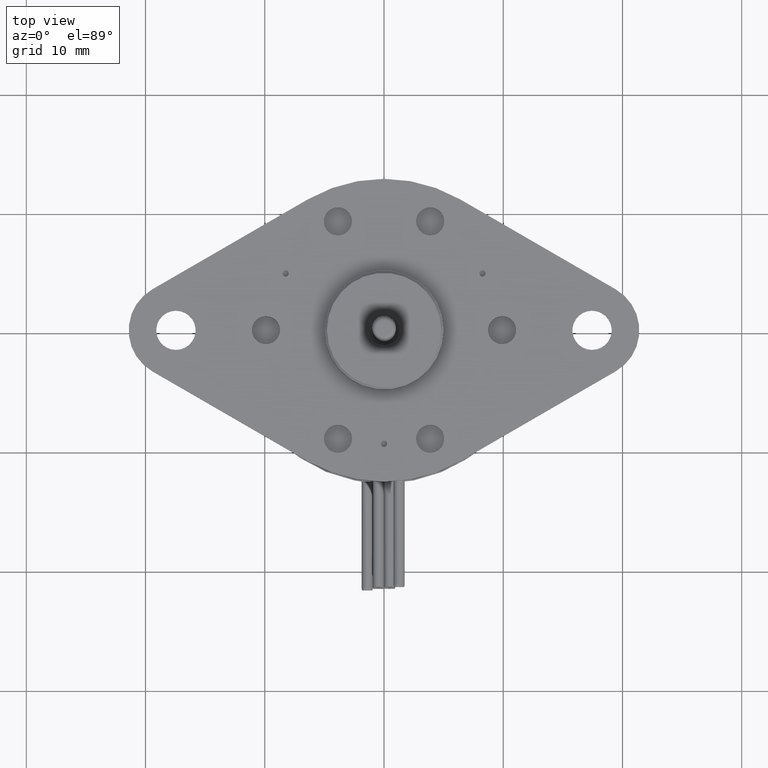
[diagram: clean part render]
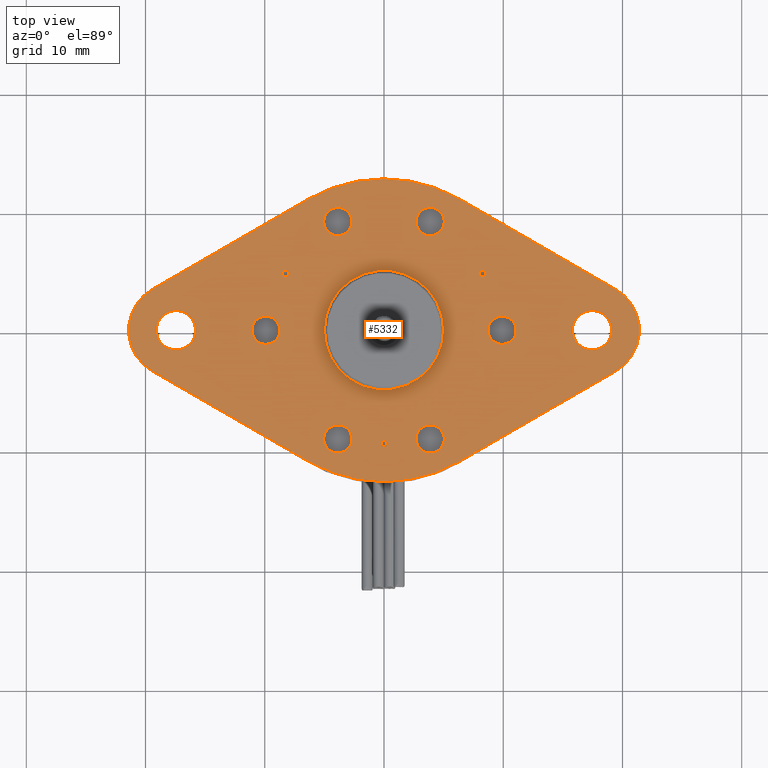
[diagram: same view with one face highlighted and labeled with its STEP entity id]
A machine part, top view. The second image highlights one B-rep face of the part: STEP entity #5332.
In plain terms, the highlighted planar face has unit normal (0, 0, 1).
Its self-contained STEP definition (entity closure, byte-faithful):
#565=DIRECTION('',(8.656047991239E-1,-5.007278020378E-1,0.E0));
#566=VECTOR('',#565,5.946704969986E-1);
#567=CARTESIAN_POINT('',(2.503639010186E-1,4.328023995621E-1,2.6E-1));
#568=LINE('',#567,#566);
#569=CARTESIAN_POINT('',(6.87E-1,0.E0,2.6E-1));
#570=DIRECTION('',(0.E0,0.E0,-1.E0));
#571=DIRECTION('',(5.007278020394E-1,8.656047991230E-1,0.E0));
#572=AXIS2_PLACEMENT_3D('',#569,#570,#571);
#574=DIRECTION('',(-8.656047991239E-1,-5.007278020378E-1,0.E0));
#575=VECTOR('',#574,5.946704969979E-1);
#576=CARTESIAN_POINT('',(7.651135371178E-1,-1.350343486634E-1,2.6E-1));
#577=LINE('',#576,#575);
#578=CARTESIAN_POINT('',(0.E0,0.E0,2.6E-1));
#579=DIRECTION('',(0.E0,0.E0,-1.E0));
#580=DIRECTION('',(5.007278020385E-1,-8.656047991235E-1,0.E0));
#581=AXIS2_PLACEMENT_3D('',#578,#579,#580);
#583=CARTESIAN_POINT('',(0.E0,0.E0,2.6E-1));
#584=DIRECTION('',(0.E0,0.E0,-1.E0));
#585=DIRECTION('',(0.E0,-1.E0,0.E0));
#586=AXIS2_PLACEMENT_3D('',#583,#584,#585);
#588=DIRECTION('',(-8.656047991239E-1,5.007278020378E-1,0.E0));
#589=VECTOR('',#588,5.946704969985E-1);
#590=CARTESIAN_POINT('',(-2.503639010187E-1,-4.328023995620E-1,2.6E-1));
#591=LINE('',#590,#589);
#592=CARTESIAN_POINT('',(-6.87E-1,0.E0,2.6E-1));
#593=DIRECTION('',(0.E0,0.E0,-1.E0));
#594=DIRECTION('',(-5.007278020394E-1,-8.656047991230E-1,0.E0));
#595=AXIS2_PLACEMENT_3D('',#592,#593,#594);
#597=DIRECTION('',(8.656047991239E-1,5.007278020378E-1,0.E0));
#598=VECTOR('',#597,5.946704969979E-1);
#599=CARTESIAN_POINT('',(-7.651135371178E-1,1.350343486634E-1,2.6E-1));
#600=LINE('',#599,#598);
#601=CARTESIAN_POINT('',(0.E0,0.E0,2.6E-1));
#602=DIRECTION('',(0.E0,0.E0,-1.E0));
#603=DIRECTION('',(-5.007278020385E-1,8.656047991235E-1,0.E0));
#604=AXIS2_PLACEMENT_3D('',#601,#602,#603);
#606=CARTESIAN_POINT('',(0.E0,0.E0,2.6E-1));
#607=DIRECTION('',(0.E0,0.E0,-1.E0));
#608=DIRECTION('',(0.E0,1.E0,0.E0));
#609=AXIS2_PLACEMENT_3D('',#606,#607,#608);
#611=CARTESIAN_POINT('',(0.E0,-3.75E-1,2.6E-1));
#612=DIRECTION('',(0.E0,0.E0,1.E0));
#613=DIRECTION('',(0.E0,1.E0,0.E0));
#614=AXIS2_PLACEMENT_3D('',#611,#612,#613);
#616=CARTESIAN_POINT('',(0.E0,-3.75E-1,2.6E-1));
#617=DIRECTION('',(0.E0,0.E0,1.E0));
#618=DIRECTION('',(0.E0,-1.E0,0.E0));
#619=AXIS2_PLACEMENT_3D('',#616,#617,#618);
#621=CARTESIAN_POINT('',(3.247595264192E-1,1.875E-1,2.6E-1));
#622=DIRECTION('',(0.E0,0.E0,1.E0));
#623=DIRECTION('',(-8.660254037858E-1,-4.999999999976E-1,0.E0));
#624=AXIS2_PLACEMENT_3D('',#621,#622,#623);
#626=CARTESIAN_POINT('',(3.247595264192E-1,1.875E-1,2.6E-1));
#627=DIRECTION('',(0.E0,0.E0,1.E0));
#628=DIRECTION('',(8.660254037833E-1,5.000000000019E-1,0.E0));
#629=AXIS2_PLACEMENT_3D('',#626,#627,#628);
#631=CARTESIAN_POINT('',(1.523851401108E-1,-3.589968928465E-1,2.6E-1));
#632=DIRECTION('',(0.E0,0.E0,1.E0));
#633=DIRECTION('',(0.E0,1.E0,0.E0));
#634=AXIS2_PLACEMENT_3D('',#631,#632,#633);
#636=CARTESIAN_POINT('',(1.523851401108E-1,-3.589968928465E-1,2.6E-1));
#637=DIRECTION('',(0.E0,0.E0,1.E0));
#638=DIRECTION('',(0.E0,-1.E0,0.E0));
#639=AXIS2_PLACEMENT_3D('',#636,#637,#638);
#641=CARTESIAN_POINT('',(1.523851401108E-1,3.589968928465E-1,2.6E-1));
#642=DIRECTION('',(0.E0,0.E0,1.E0));
#643=DIRECTION('',(0.E0,1.E0,0.E0));
#644=AXIS2_PLACEMENT_3D('',#641,#642,#643);
#646=CARTESIAN_POINT('',(1.523851401108E-1,3.589968928465E-1,2.6E-1));
#647=DIRECTION('',(0.E0,0.E0,1.E0));
#648=DIRECTION('',(0.E0,-1.E0,0.E0));
#649=AXIS2_PLACEMENT_3D('',#646,#647,#648);
#651=CARTESIAN_POINT('',(-1.523851401108E-1,3.589968928465E-1,2.6E-1));
#652=DIRECTION('',(0.E0,0.E0,1.E0));
#653=DIRECTION('',(0.E0,1.E0,0.E0));
#654=AXIS2_PLACEMENT_3D('',#651,#652,#653);
#656=CARTESIAN_POINT('',(-1.523851401108E-1,3.589968928465E-1,2.6E-1));
#657=DIRECTION('',(0.E0,0.E0,1.E0));
#658=DIRECTION('',(0.E0,-1.E0,0.E0));
#659=AXIS2_PLACEMENT_3D('',#656,#657,#658);
#661=CARTESIAN_POINT('',(-1.523851401108E-1,-3.589968928465E-1,2.6E-1));
#662=DIRECTION('',(0.E0,0.E0,1.E0));
#663=DIRECTION('',(0.E0,1.E0,0.E0));
#664=AXIS2_PLACEMENT_3D('',#661,#662,#663);
#666=CARTESIAN_POINT('',(-1.523851401108E-1,-3.589968928465E-1,2.6E-1));
#667=DIRECTION('',(0.E0,0.E0,1.E0));
#668=DIRECTION('',(0.E0,-1.E0,0.E0));
#669=AXIS2_PLACEMENT_3D('',#666,#667,#668);
#671=CARTESIAN_POINT('',(3.9E-1,0.E0,2.6E-1));
#672=DIRECTION('',(0.E0,0.E0,1.E0));
#673=DIRECTION('',(0.E0,1.E0,0.E0));
#674=AXIS2_PLACEMENT_3D('',#671,#672,#673);
#676=CARTESIAN_POINT('',(3.9E-1,0.E0,2.6E-1));
#677=DIRECTION('',(0.E0,0.E0,1.E0));
#678=DIRECTION('',(0.E0,-1.E0,0.E0));
#679=AXIS2_PLACEMENT_3D('',#676,#677,#678);
#681=CARTESIAN_POINT('',(-3.9E-1,0.E0,2.6E-1));
#682=DIRECTION('',(0.E0,0.E0,1.E0));
#683=DIRECTION('',(0.E0,1.E0,0.E0));
#684=AXIS2_PLACEMENT_3D('',#681,#682,#683);
#686=CARTESIAN_POINT('',(-3.9E-1,0.E0,2.6E-1));
#687=DIRECTION('',(0.E0,0.E0,1.E0));
#688=DIRECTION('',(0.E0,-1.E0,0.E0));
#689=AXIS2_PLACEMENT_3D('',#686,#687,#688);
#691=CARTESIAN_POINT('',(-6.87E-1,0.E0,2.6E-1));
#692=DIRECTION('',(0.E0,0.E0,1.E0));
#693=DIRECTION('',(0.E0,1.E0,0.E0));
#694=AXIS2_PLACEMENT_3D('',#691,#692,#693);
#696=CARTESIAN_POINT('',(-6.87E-1,0.E0,2.6E-1));
#697=DIRECTION('',(0.E0,0.E0,1.E0));
#698=DIRECTION('',(0.E0,-1.E0,0.E0));
#699=AXIS2_PLACEMENT_3D('',#696,#697,#698);
#701=CARTESIAN_POINT('',(6.87E-1,0.E0,2.6E-1));
#702=DIRECTION('',(0.E0,0.E0,1.E0));
#703=DIRECTION('',(0.E0,1.E0,0.E0));
#704=AXIS2_PLACEMENT_3D('',#701,#702,#703);
#706=CARTESIAN_POINT('',(6.87E-1,0.E0,2.6E-1));
#707=DIRECTION('',(0.E0,0.E0,1.E0));
#708=DIRECTION('',(0.E0,-1.E0,0.E0));
#709=AXIS2_PLACEMENT_3D('',#706,#707,#708);
#711=CARTESIAN_POINT('',(-3.247595264192E-1,1.875E-1,2.6E-1));
#712=DIRECTION('',(0.E0,0.E0,1.E0));
#713=DIRECTION('',(8.660254037858E-1,-4.999999999976E-1,0.E0));
#714=AXIS2_PLACEMENT_3D('',#711,#712,#713);
#716=CARTESIAN_POINT('',(-3.247595264192E-1,1.875E-1,2.6E-1));
#717=DIRECTION('',(0.E0,0.E0,1.E0));
#718=DIRECTION('',(-8.660254037833E-1,5.000000000019E-1,0.E0));
#719=AXIS2_PLACEMENT_3D('',#716,#717,#718);
#721=CARTESIAN_POINT('',(0.E0,0.E0,2.6E-1));
#722=DIRECTION('',(0.E0,0.E0,1.E0));
#723=DIRECTION('',(-1.E0,2.065037369931E-13,0.E0));
#724=AXIS2_PLACEMENT_3D('',#721,#722,#723);
#726=CARTESIAN_POINT('',(0.E0,0.E0,2.6E-1));
#727=DIRECTION('',(0.E0,0.E0,1.E0));
#728=DIRECTION('',(1.E0,-2.065000357449E-13,0.E0));
#729=AXIS2_PLACEMENT_3D('',#726,#727,#728);
#4205=CARTESIAN_POINT('',(7.651135371180E-1,1.350343486633E-1,2.6E-1));
#4206=VERTEX_POINT('',#4205);
#4207=CARTESIAN_POINT('',(2.503639010186E-1,4.328023995621E-1,2.6E-1));
#4208=VERTEX_POINT('',#4207);
#4209=CARTESIAN_POINT('',(7.651135371178E-1,-1.350343486634E-1,2.6E-1));
#4210=VERTEX_POINT('',#4209);
#4211=CARTESIAN_POINT('',(2.503639010190E-1,-4.328023995619E-1,2.6E-1));
#4212=VERTEX_POINT('',#4211);
#4213=CARTESIAN_POINT('',(-2.503639010187E-1,-4.328023995620E-1,2.6E-1));
#4214=VERTEX_POINT('',#4213);
#4215=CARTESIAN_POINT('',(0.E0,-5.E-1,2.6E-1));
#4216=VERTEX_POINT('',#4215);
#4217=CARTESIAN_POINT('',(-7.651135371180E-1,-1.350343486633E-1,2.6E-1));
#4218=VERTEX_POINT('',#4217);
#4219=CARTESIAN_POINT('',(-7.651135371178E-1,1.350343486634E-1,2.6E-1));
#4220=VERTEX_POINT('',#4219);
#4221=CARTESIAN_POINT('',(-2.503639010190E-1,4.328023995619E-1,2.6E-1));
#4222=VERTEX_POINT('',#4221);
#4223=CARTESIAN_POINT('',(0.E0,5.E-1,2.6E-1));
#4224=VERTEX_POINT('',#4223);
#4225=CARTESIAN_POINT('',(0.E0,-3.65E-1,2.6E-1));
#4226=CARTESIAN_POINT('',(0.E0,-3.85E-1,2.6E-1));
#4227=VERTEX_POINT('',#4225);
#4228=VERTEX_POINT('',#4226);
#4229=CARTESIAN_POINT('',(3.160992723813E-1,1.825E-1,2.6E-1));
#4230=CARTESIAN_POINT('',(3.334197804570E-1,1.925E-1,2.6E-1));
#4231=VERTEX_POINT('',#4229);
#4232=VERTEX_POINT('',#4230);
#4233=CARTESIAN_POINT('',(1.523851401108E-1,-3.124968928465E-1,2.6E-1));
#4234=CARTESIAN_POINT('',(1.523851401108E-1,-4.054968928465E-1,2.6E-1));
#4235=VERTEX_POINT('',#4233);
#4236=VERTEX_POINT('',#4234);
#4237=CARTESIAN_POINT('',(1.523851401108E-1,4.054968928465E-1,2.6E-1));
#4238=CARTESIAN_POINT('',(1.523851401108E-1,3.124968928465E-1,2.6E-1));
#4239=VERTEX_POINT('',#4237);
#4240=VERTEX_POINT('',#4238);
#4241=CARTESIAN_POINT('',(-1.523851401108E-1,4.054968928465E-1,2.6E-1));
#4242=CARTESIAN_POINT('',(-1.523851401108E-1,3.124968928465E-1,2.6E-1));
#4243=VERTEX_POINT('',#4241);
#4244=VERTEX_POINT('',#4242);
#4245=CARTESIAN_POINT('',(-1.523851401108E-1,-3.124968928465E-1,2.6E-1));
#4246=CARTESIAN_POINT('',(-1.523851401108E-1,-4.054968928465E-1,2.6E-1));
#4247=VERTEX_POINT('',#4245);
#4248=VERTEX_POINT('',#4246);
#4249=CARTESIAN_POINT('',(3.9E-1,4.65E-2,2.6E-1));
#4250=CARTESIAN_POINT('',(3.9E-1,-4.65E-2,2.6E-1));
#4251=VERTEX_POINT('',#4249);
#4252=VERTEX_POINT('',#4250);
#4253=CARTESIAN_POINT('',(-3.9E-1,4.65E-2,2.6E-1));
#4254=CARTESIAN_POINT('',(-3.9E-1,-4.65E-2,2.6E-1));
#4255=VERTEX_POINT('',#4253);
#4256=VERTEX_POINT('',#4254);
#4257=CARTESIAN_POINT('',(-6.87E-1,6.5E-2,2.6E-1));
#4258=CARTESIAN_POINT('',(-6.87E-1,-6.5E-2,2.6E-1));
#4259=VERTEX_POINT('',#4257);
#4260=VERTEX_POINT('',#4258);
#4261=CARTESIAN_POINT('',(6.87E-1,6.5E-2,2.6E-1));
#4262=CARTESIAN_POINT('',(6.87E-1,-6.5E-2,2.6E-1));
#4263=VERTEX_POINT('',#4261);
#4264=VERTEX_POINT('',#4262);
#4265=CARTESIAN_POINT('',(-3.160992723813E-1,1.825E-1,2.6E-1));
#4266=CARTESIAN_POINT('',(-3.334197804570E-1,1.925E-1,2.6E-1));
#4267=VERTEX_POINT('',#4265);
#4268=VERTEX_POINT('',#4266);
#4269=CARTESIAN_POINT('',(-1.9685E-1,4.065026062709E-14,2.6E-1));
#4270=CARTESIAN_POINT('',(1.9685E-1,-4.067436779933E-14,2.6E-1));
#4271=VERTEX_POINT('',#4269);
#4272=VERTEX_POINT('',#4270);
#5243=CARTESIAN_POINT('',(0.E0,0.E0,2.6E-1));
#5244=DIRECTION('',(0.E0,0.E0,1.E0));
#5245=DIRECTION('',(0.E0,-1.E0,0.E0));
#5246=AXIS2_PLACEMENT_3D('',#5243,#5244,#5245);
#5247=PLANE('',#5246);
#5248=ORIENTED_EDGE('',*,*,#5133,.T.);
#5249=ORIENTED_EDGE('',*,*,#5148,.T.);
#5250=ORIENTED_EDGE('',*,*,#5162,.T.);
#5251=ORIENTED_EDGE('',*,*,#5179,.T.);
#5252=ORIENTED_EDGE('',*,*,#5177,.T.);
#5253=ORIENTED_EDGE('',*,*,#5193,.T.);
#5254=ORIENTED_EDGE('',*,*,#5207,.T.);
#5255=ORIENTED_EDGE('',*,*,#5221,.T.);
#5256=ORIENTED_EDGE('',*,*,#5237,.T.);
#5257=ORIENTED_EDGE('',*,*,#5235,.T.);
#5258=EDGE_LOOP('',(#5248,#5249,#5250,#5251,#5252,#5253,#5254,#5255,#5256,
#5257));
#5259=FACE_OUTER_BOUND('',#5258,.F.);
#5261=ORIENTED_EDGE('',*,*,#5260,.T.);
#5263=ORIENTED_EDGE('',*,*,#5262,.T.);
#5264=EDGE_LOOP('',(#5261,#5263));
#5265=FACE_BOUND('',#5264,.F.);
#5267=ORIENTED_EDGE('',*,*,#5266,.T.);
#5269=ORIENTED_EDGE('',*,*,#5268,.T.);
#5270=EDGE_LOOP('',(#5267,#5269));
#5271=FACE_BOUND('',#5270,.F.);
#5273=ORIENTED_EDGE('',*,*,#5272,.T.);
#5275=ORIENTED_EDGE('',*,*,#5274,.T.);
#5276=EDGE_LOOP('',(#5273,#5275));
#5277=FACE_BOUND('',#5276,.F.);
#5279=ORIENTED_EDGE('',*,*,#5278,.T.);
#5281=ORIENTED_EDGE('',*,*,#5280,.T.);
#5282=EDGE_LOOP('',(#5279,#5281));
#5283=FACE_BOUND('',#5282,.F.);
#5285=ORIENTED_EDGE('',*,*,#5284,.T.);
#5287=ORIENTED_EDGE('',*,*,#5286,.T.);
#5288=EDGE_LOOP('',(#5285,#5287));
#5289=FACE_BOUND('',#5288,.F.);
#5291=ORIENTED_EDGE('',*,*,#5290,.T.);
#5293=ORIENTED_EDGE('',*,*,#5292,.T.);
#5294=EDGE_LOOP('',(#5291,#5293));
#5295=FACE_BOUND('',#5294,.F.);
#5297=ORIENTED_EDGE('',*,*,#5296,.T.);
#5299=ORIENTED_EDGE('',*,*,#5298,.T.);
#5300=EDGE_LOOP('',(#5297,#5299));
#5301=FACE_BOUND('',#5300,.F.);
#5303=ORIENTED_EDGE('',*,*,#5302,.T.);
#5305=ORIENTED_EDGE('',*,*,#5304,.T.);
#5306=EDGE_LOOP('',(#5303,#5305));
#5307=FACE_BOUND('',#5306,.F.);
#5309=ORIENTED_EDGE('',*,*,#5308,.T.);
#5311=ORIENTED_EDGE('',*,*,#5310,.T.);
#5312=EDGE_LOOP('',(#5309,#5311));
#5313=FACE_BOUND('',#5312,.F.);
#5315=ORIENTED_EDGE('',*,*,#5314,.T.);
#5317=ORIENTED_EDGE('',*,*,#5316,.T.);
#5318=EDGE_LOOP('',(#5315,#5317));
#5319=FACE_BOUND('',#5318,.F.);
#5321=ORIENTED_EDGE('',*,*,#5320,.T.);
#5323=ORIENTED_EDGE('',*,*,#5322,.T.);
#5324=EDGE_LOOP('',(#5321,#5323));
#5325=FACE_BOUND('',#5324,.F.);
#5327=ORIENTED_EDGE('',*,*,#5326,.T.);
#5329=ORIENTED_EDGE('',*,*,#5328,.T.);
#5330=EDGE_LOOP('',(#5327,#5329));
#5331=FACE_BOUND('',#5330,.F.);
#5332=ADVANCED_FACE('',(#5259,#5265,#5271,#5277,#5283,#5289,#5295,#5301,#5307,
#5313,#5319,#5325,#5331),#5247,.T.);
#573=CIRCLE('',#572,1.56E-1);
#582=CIRCLE('',#581,5.E-1);
#587=CIRCLE('',#586,5.E-1);
#596=CIRCLE('',#595,1.56E-1);
#605=CIRCLE('',#604,5.E-1);
#610=CIRCLE('',#609,5.E-1);
#615=CIRCLE('',#614,1.000000000002E-2);
#620=CIRCLE('',#619,1.000000000002E-2);
#625=CIRCLE('',#624,1.000000000002E-2);
#630=CIRCLE('',#629,1.000000000002E-2);
#635=CIRCLE('',#634,4.65E-2);
#640=CIRCLE('',#639,4.65E-2);
#645=CIRCLE('',#644,4.65E-2);
#650=CIRCLE('',#649,4.65E-2);
#655=CIRCLE('',#654,4.65E-2);
#660=CIRCLE('',#659,4.65E-2);
#665=CIRCLE('',#664,4.65E-2);
#670=CIRCLE('',#669,4.65E-2);
#675=CIRCLE('',#674,4.65E-2);
#680=CIRCLE('',#679,4.65E-2);
#685=CIRCLE('',#684,4.65E-2);
#690=CIRCLE('',#689,4.65E-2);
#695=CIRCLE('',#694,6.5E-2);
#700=CIRCLE('',#699,6.5E-2);
#705=CIRCLE('',#704,6.5E-2);
#710=CIRCLE('',#709,6.5E-2);
#715=CIRCLE('',#714,1.000000000002E-2);
#720=CIRCLE('',#719,1.000000000002E-2);
#725=CIRCLE('',#724,1.9685E-1);
#730=CIRCLE('',#729,1.9685E-1);
#5133=EDGE_CURVE('',#4208,#4206,#568,.T.);
#5148=EDGE_CURVE('',#4206,#4210,#573,.T.);
#5162=EDGE_CURVE('',#4210,#4212,#577,.T.);
#5177=EDGE_CURVE('',#4216,#4214,#587,.T.);
#5179=EDGE_CURVE('',#4212,#4216,#582,.T.);
#5193=EDGE_CURVE('',#4214,#4218,#591,.T.);
#5207=EDGE_CURVE('',#4218,#4220,#596,.T.);
#5221=EDGE_CURVE('',#4220,#4222,#600,.T.);
#5235=EDGE_CURVE('',#4224,#4208,#610,.T.);
#5237=EDGE_CURVE('',#4222,#4224,#605,.T.);
#5260=EDGE_CURVE('',#4227,#4228,#615,.T.);
#5262=EDGE_CURVE('',#4228,#4227,#620,.T.);
#5266=EDGE_CURVE('',#4231,#4232,#625,.T.);
#5268=EDGE_CURVE('',#4232,#4231,#630,.T.);
#5272=EDGE_CURVE('',#4235,#4236,#635,.T.);
#5274=EDGE_CURVE('',#4236,#4235,#640,.T.);
#5278=EDGE_CURVE('',#4239,#4240,#645,.T.);
#5280=EDGE_CURVE('',#4240,#4239,#650,.T.);
#5284=EDGE_CURVE('',#4243,#4244,#655,.T.);
#5286=EDGE_CURVE('',#4244,#4243,#660,.T.);
#5290=EDGE_CURVE('',#4247,#4248,#665,.T.);
#5292=EDGE_CURVE('',#4248,#4247,#670,.T.);
#5296=EDGE_CURVE('',#4251,#4252,#675,.T.);
#5298=EDGE_CURVE('',#4252,#4251,#680,.T.);
#5302=EDGE_CURVE('',#4255,#4256,#685,.T.);
#5304=EDGE_CURVE('',#4256,#4255,#690,.T.);
#5308=EDGE_CURVE('',#4259,#4260,#695,.T.);
#5310=EDGE_CURVE('',#4260,#4259,#700,.T.);
#5314=EDGE_CURVE('',#4263,#4264,#705,.T.);
#5316=EDGE_CURVE('',#4264,#4263,#710,.T.);
#5320=EDGE_CURVE('',#4267,#4268,#715,.T.);
#5322=EDGE_CURVE('',#4268,#4267,#720,.T.);
#5326=EDGE_CURVE('',#4271,#4272,#725,.T.);
#5328=EDGE_CURVE('',#4272,#4271,#730,.T.);